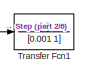
[diagram: root canvas - part 1/6, top center region]
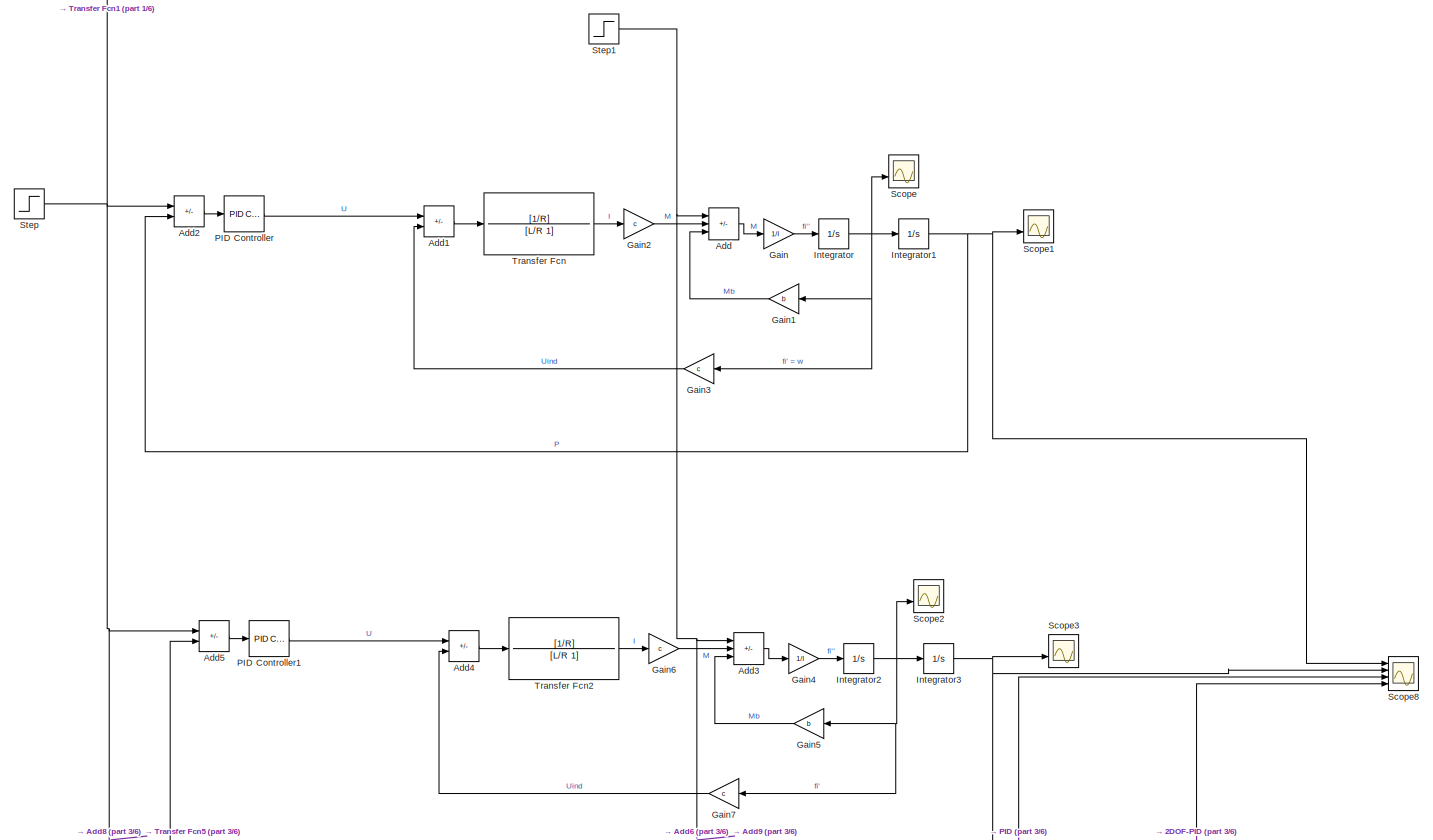
[diagram: root canvas - part 2/6, full width, top band]
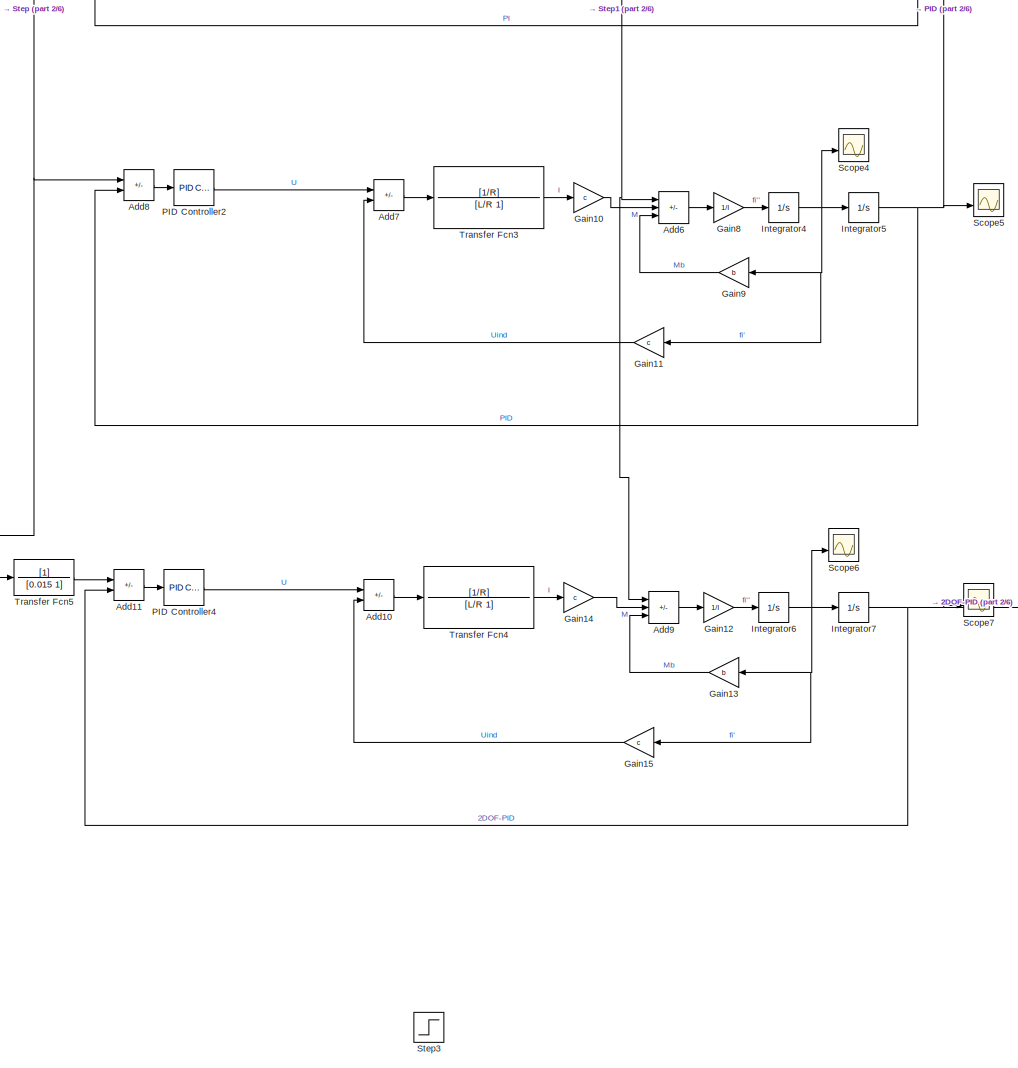
[diagram: root canvas - part 3/6, top center region]
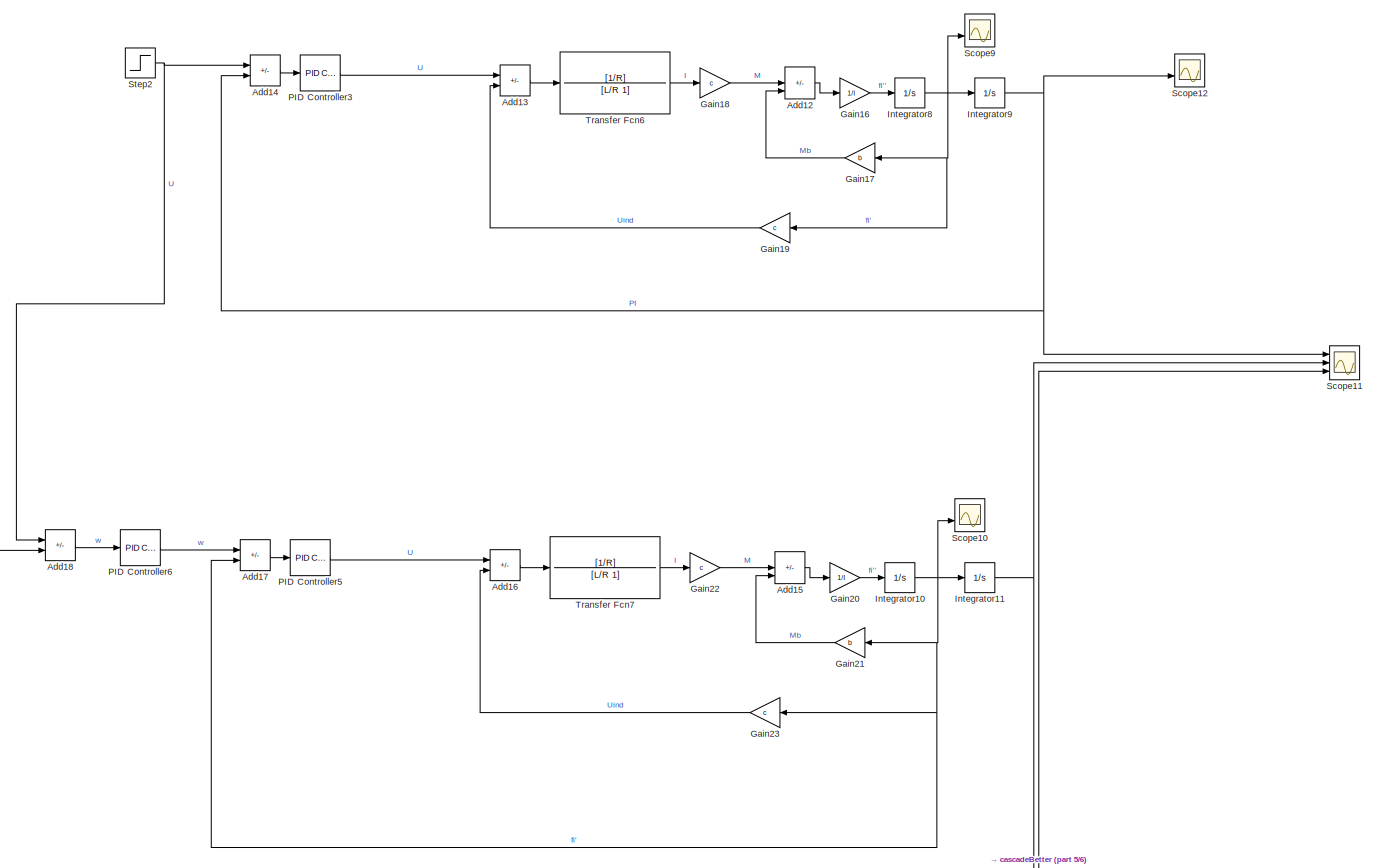
[diagram: root canvas - part 4/6, full width, middle band]
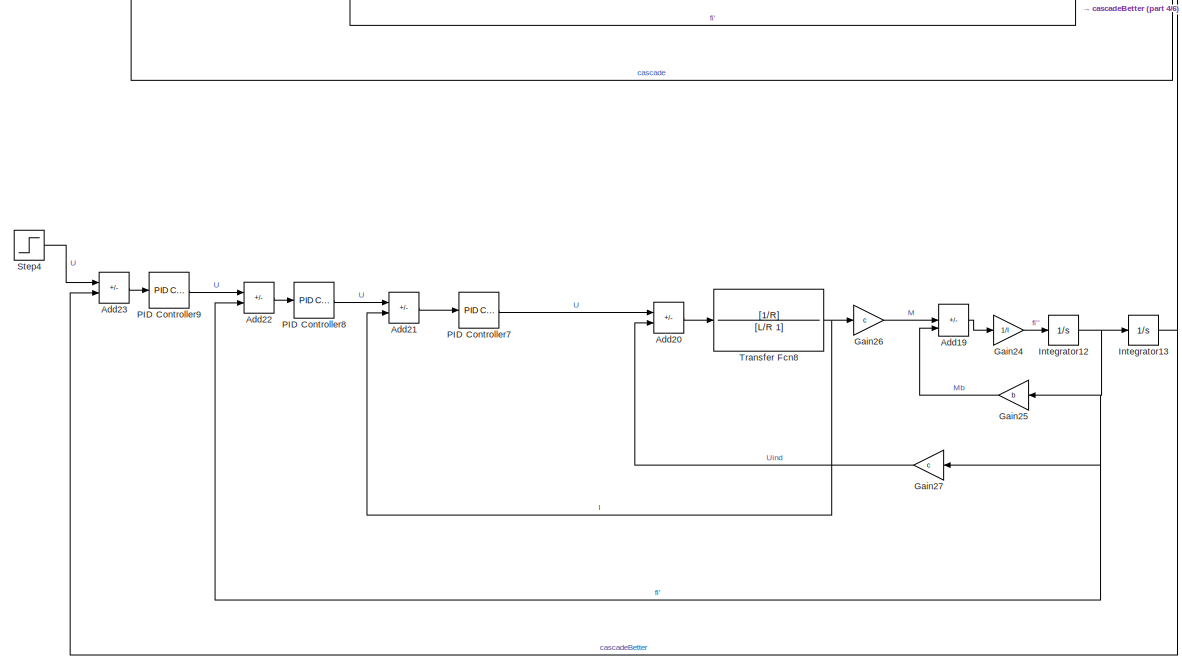
[diagram: root canvas - part 5/6, bottom center region]
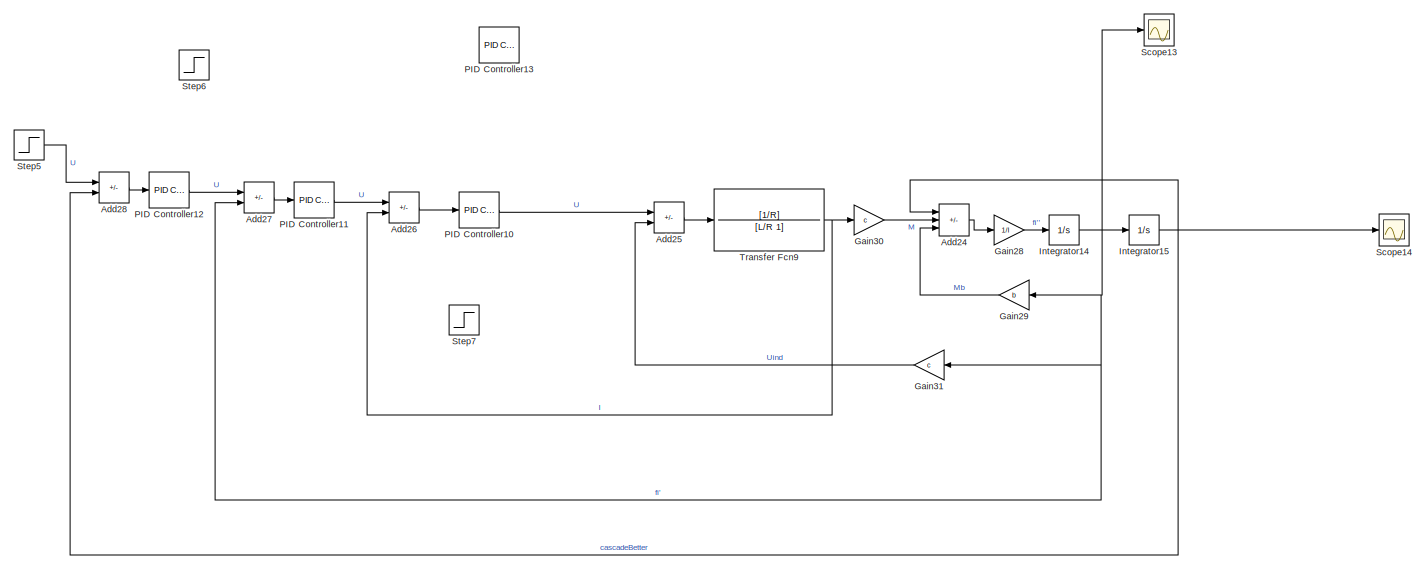
[diagram: root canvas - part 6/6, full width, bottom band]
MODEL slx_0df2f0199767
KIND model
CONFIG AbsTol = auto
CONFIG EnableMultiTasking = off
CONFIG FixedStep = auto
CONFIG MaxStep = auto
CONFIG MinStep = auto
CONFIG RelTol = 1e-3
CONFIG SampleTimeConstraint = Unconstrained
CONFIG SolverName = VariableStepAuto
CONFIG StartTime = 0.0
CONFIG StopTime = 0.2
BLOCK [Sum] Add
  IconShape = rectangular
  Inputs = ++-
  Ports = [3, 1]
BLOCK [Sum] Add1
  IconShape = rectangular
  Inputs = +-
  Ports = [2, 1]
BLOCK [Sum] Add10
  IconShape = rectangular
  Inputs = +-
  Ports = [2, 1]
BLOCK [Sum] Add11
  IconShape = rectangular
  Inputs = +-
  Ports = [2, 1]
BLOCK [Sum] Add12
  IconShape = rectangular
  Inputs = ++-
  Ports = [3, 1]
BLOCK [Sum] Add13
  IconShape = rectangular
  Inputs = +-
  Ports = [2, 1]
BLOCK [Sum] Add14
  IconShape = rectangular
  Inputs = +-
  Ports = [2, 1]
BLOCK [Sum] Add15
  IconShape = rectangular
  Inputs = ++-
  Ports = [3, 1]
BLOCK [Sum] Add16
  IconShape = rectangular
  Inputs = +-
  Ports = [2, 1]
BLOCK [Sum] Add17
  IconShape = rectangular
  Inputs = +-
  Ports = [2, 1]
BLOCK [Sum] Add18
  IconShape = rectangular
  Inputs = +-
  NameLocation = right
  Ports = [2, 1]
BLOCK [Sum] Add19
  IconShape = rectangular
  Inputs = ++-
  Ports = [3, 1]
BLOCK [Sum] Add2
  IconShape = rectangular
  Inputs = +-
  Ports = [2, 1]
BLOCK [Sum] Add20
  IconShape = rectangular
  Inputs = +-
  Ports = [2, 1]
BLOCK [Sum] Add21
  IconShape = rectangular
  Inputs = +-
  Ports = [2, 1]
BLOCK [Sum] Add22
  IconShape = rectangular
  Inputs = +-
  Ports = [2, 1]
BLOCK [Sum] Add23
  IconShape = rectangular
  Inputs = +-
  Ports = [2, 1]
BLOCK [Sum] Add24
  IconShape = rectangular
  Inputs = ++-
  Ports = [3, 1]
BLOCK [Sum] Add25
  IconShape = rectangular
  Inputs = +-
  Ports = [2, 1]
BLOCK [Sum] Add26
  IconShape = rectangular
  Inputs = +-
  Ports = [2, 1]
BLOCK [Sum] Add27
  IconShape = rectangular
  Inputs = +-
  Ports = [2, 1]
BLOCK [Sum] Add28
  IconShape = rectangular
  Inputs = +-
  Ports = [2, 1]
BLOCK [Sum] Add3
  IconShape = rectangular
  Inputs = ++-
  Ports = [3, 1]
BLOCK [Sum] Add4
  IconShape = rectangular
  Inputs = +-
  Ports = [2, 1]
BLOCK [Sum] Add5
  IconShape = rectangular
  Inputs = +-
  Ports = [2, 1]
BLOCK [Sum] Add6
  IconShape = rectangular
  Inputs = ++-
  Ports = [3, 1]
BLOCK [Sum] Add7
  IconShape = rectangular
  Inputs = +-
  Ports = [2, 1]
BLOCK [Sum] Add8
  IconShape = rectangular
  Inputs = +-
  Ports = [2, 1]
BLOCK [Sum] Add9
  IconShape = rectangular
  Inputs = ++-
  Ports = [3, 1]
BLOCK [Gain] Gain
  Gain = 1/I
BLOCK [Gain] Gain1
  Gain = b
  NameLocation = top
BLOCK [Gain] Gain10
  Gain = c
BLOCK [Gain] Gain11
  Gain = c
  NameLocation = top
BLOCK [Gain] Gain12
  Gain = 1/I
BLOCK [Gain] Gain13
  Gain = b
  NameLocation = top
BLOCK [Gain] Gain14
  Gain = c
BLOCK [Gain] Gain15
  Gain = c
  NameLocation = top
BLOCK [Gain] Gain16
  Gain = 1/I
BLOCK [Gain] Gain17
  Gain = b
  NameLocation = top
BLOCK [Gain] Gain18
  Gain = c
BLOCK [Gain] Gain19
  Gain = c
  NameLocation = top
BLOCK [Gain] Gain2
  Gain = c
BLOCK [Gain] Gain20
  Gain = 1/I
BLOCK [Gain] Gain21
  Gain = b
  NameLocation = top
BLOCK [Gain] Gain22
  Gain = c
BLOCK [Gain] Gain23
  Gain = c
  NameLocation = top
BLOCK [Gain] Gain24
  Gain = 1/I
BLOCK [Gain] Gain25
  Gain = b
  NameLocation = top
BLOCK [Gain] Gain26
  Gain = c
BLOCK [Gain] Gain27
  Gain = c
  NameLocation = top
BLOCK [Gain] Gain28
  Gain = 1/I
BLOCK [Gain] Gain29
  Gain = b
  NameLocation = top
BLOCK [Gain] Gain3
  Gain = c
  NameLocation = top
BLOCK [Gain] Gain30
  Gain = c
BLOCK [Gain] Gain31
  Gain = c
  NameLocation = top
BLOCK [Gain] Gain4
  Gain = 1/I
BLOCK [Gain] Gain5
  Gain = b
  NameLocation = top
BLOCK [Gain] Gain6
  Gain = c
BLOCK [Gain] Gain7
  Gain = c
  NameLocation = top
BLOCK [Gain] Gain8
  Gain = 1/I
BLOCK [Gain] Gain9
  Gain = b
  NameLocation = top
BLOCK [Integrator] Integrator
  Ports = [1, 1]
BLOCK [Integrator] Integrator1
  Ports = [1, 1]
BLOCK [Integrator] Integrator10
  Ports = [1, 1]
BLOCK [Integrator] Integrator11
  Ports = [1, 1]
BLOCK [Integrator] Integrator12
  Ports = [1, 1]
BLOCK [Integrator] Integrator13
  Ports = [1, 1]
BLOCK [Integrator] Integrator14
  Ports = [1, 1]
BLOCK [Integrator] Integrator15
  Ports = [1, 1]
BLOCK [Integrator] Integrator2
  Ports = [1, 1]
BLOCK [Integrator] Integrator3
  Ports = [1, 1]
BLOCK [Integrator] Integrator4
  Ports = [1, 1]
BLOCK [Integrator] Integrator5
  Ports = [1, 1]
BLOCK [Integrator] Integrator6
  Ports = [1, 1]
BLOCK [Integrator] Integrator7
  Ports = [1, 1]
BLOCK [Integrator] Integrator8
  Ports = [1, 1]
BLOCK [Integrator] Integrator9
  Ports = [1, 1]
BLOCK [Reference] PID Controller  REF=pid_lib/PID Controller
  Ports = [1, 1]
  SourceBlock = pid_lib/PID Controller
  SourceProductBaseCode = SL
  SourceType = PID 1dof
BLOCK [Reference] PID Controller1  REF=pid_lib/PID Controller
  Ports = [1, 1]
  SourceBlock = pid_lib/PID Controller
  SourceProductBaseCode = SL
  SourceType = PID 1dof
BLOCK [Reference] PID Controller10  REF=pid_lib/PID Controller
  Ports = [1, 1]
  SourceBlock = pid_lib/PID Controller
  SourceProductBaseCode = SL
  SourceType = PID 1dof
BLOCK [Reference] PID Controller11  REF=pid_lib/PID Controller
  Ports = [1, 1]
  SourceBlock = pid_lib/PID Controller
  SourceProductBaseCode = SL
  SourceType = PID 1dof
BLOCK [Reference] PID Controller12  REF=pid_lib/PID Controller
  Ports = [1, 1]
  SourceBlock = pid_lib/PID Controller
  SourceProductBaseCode = SL
  SourceType = PID 1dof
BLOCK [Reference] PID Controller13  REF=pid_lib/PID Controller
  Ports = [1, 1]
  SourceBlock = pid_lib/PID Controller
  SourceProductBaseCode = SL
  SourceType = PID 1dof
BLOCK [Reference] PID Controller2  REF=pid_lib/PID Controller
  Ports = [1, 1]
  SourceBlock = pid_lib/PID Controller
  SourceProductBaseCode = SL
  SourceType = PID 1dof
BLOCK [Reference] PID Controller3  REF=pid_lib/PID Controller
  Ports = [1, 1]
  SourceBlock = pid_lib/PID Controller
  SourceProductBaseCode = SL
  SourceType = PID 1dof
BLOCK [Reference] PID Controller4  REF=pid_lib/PID Controller
  Ports = [1, 1]
  SourceBlock = pid_lib/PID Controller
  SourceProductBaseCode = SL
  SourceType = PID 1dof
BLOCK [Reference] PID Controller5  REF=pid_lib/PID Controller
  Ports = [1, 1]
  SourceBlock = pid_lib/PID Controller
  SourceProductBaseCode = SL
  SourceType = PID 1dof
BLOCK [Reference] PID Controller6  REF=pid_lib/PID Controller
  Ports = [1, 1]
  SourceBlock = pid_lib/PID Controller
  SourceProductBaseCode = SL
  SourceType = PID 1dof
BLOCK [Reference] PID Controller7  REF=pid_lib/PID Controller
  Ports = [1, 1]
  SourceBlock = pid_lib/PID Controller
  SourceProductBaseCode = SL
  SourceType = PID 1dof
BLOCK [Reference] PID Controller8  REF=pid_lib/PID Controller
  Ports = [1, 1]
  SourceBlock = pid_lib/PID Controller
  SourceProductBaseCode = SL
  SourceType = PID 1dof
BLOCK [Reference] PID Controller9  REF=pid_lib/PID Controller
  Ports = [1, 1]
  SourceBlock = pid_lib/PID Controller
  SourceProductBaseCode = SL
  SourceType = PID 1dof
BLOCK [Scope] Scope
  Floating = off
  NumInputPorts = 2
  Ports = [2]
  ScopeSpecificationString = Simulink.scopes.TimeScopeBlockCfg('CurrentConfiguration', extmgr.ConfigurationSet(extmgr.Configuration('Core','General UI',true),extmgr.Configuration('Core','Source UI',true),extmgr.Configuration('Sources','WiredSimulink',true,'DataLoggingLimitDataPoints',true,'DataLoggingSaveFormat','Array','DataLoggingDecimation','1'),extmgr.Configuration('Visuals','Time Domain',true,'SerializedDisplays',{struct...<+1613ch>
BLOCK [Scope] Scope1
  Floating = off
  NumInputPorts = 2
  Ports = [2]
  ScopeSpecificationString = Simulink.scopes.TimeScopeBlockCfg('CurrentConfiguration', extmgr.ConfigurationSet(extmgr.Configuration('Core','General UI',true),extmgr.Configuration('Core','Source UI',true),extmgr.Configuration('Sources','WiredSimulink',true,'DataLoggingLimitDataPoints',true,'DataLoggingSaveFormat','Array','DataLoggingDecimation','1','DataLoggingVariableName','ScopeData1'),extmgr.Configuration('Visuals','Time Do...<+1977ch>
BLOCK [Scope] Scope10
  Floating = off
  NumInputPorts = 2
  Ports = [2]
  ScopeSpecificationString = Simulink.scopes.TimeScopeBlockCfg('CurrentConfiguration', extmgr.ConfigurationSet(extmgr.Configuration('Core','General UI',true),extmgr.Configuration('Core','Source UI',true),extmgr.Configuration('Sources','WiredSimulink',true,'DataLoggingLimitDataPoints',true,'DataLoggingSaveFormat','Array','DataLoggingDecimation','1','DataLoggingVariableName','ScopeData2'),extmgr.Configuration('Visuals','Time Do...<+1665ch>
BLOCK [Scope] Scope11
  Floating = off
  NumInputPorts = 3
  Ports = [3]
  ScopeSpecificationString = Simulink.scopes.TimeScopeBlockCfg('CurrentConfiguration', extmgr.ConfigurationSet(extmgr.Configuration('Core','General UI',true),extmgr.Configuration('Core','Source UI',true),extmgr.Configuration('Sources','WiredSimulink',true,'DataLoggingLimitDataPoints',true,'DataLoggingSaveFormat','Array','DataLoggingDecimation','1','DataLoggingVariableName','ScopeData3'),extmgr.Configuration('Visuals','Time Do...<+1728ch>
BLOCK [Scope] Scope12
  Floating = off
  NumInputPorts = 2
  Ports = [2]
  ScopeSpecificationString = Simulink.scopes.TimeScopeBlockCfg('CurrentConfiguration', extmgr.ConfigurationSet(extmgr.Configuration('Core','General UI',true),extmgr.Configuration('Core','Source UI',true),extmgr.Configuration('Sources','WiredSimulink',true,'DataLoggingLimitDataPoints',true,'DataLoggingSaveFormat','Array','DataLoggingDecimation','1','DataLoggingVariableName','ScopeData1'),extmgr.Configuration('Visuals','Time Do...<+1669ch>
BLOCK [Scope] Scope13
  Floating = off
  NumInputPorts = 1
  Ports = [1]
  ScopeSpecificationString = Simulink.scopes.TimeScopeBlockCfg('CurrentConfiguration', extmgr.ConfigurationSet(extmgr.Configuration('Core','General UI',true),extmgr.Configuration('Core','Source UI',true),extmgr.Configuration('Sources','WiredSimulink',true,'DataLoggingLimitDataPoints',true,'DataLoggingSaveFormat','Array','DataLoggingDecimation','1','DataLoggingVariableName','ScopeData2'),extmgr.Configuration('Visuals','Time Do...<+1723ch>
BLOCK [Scope] Scope14
  Floating = off
  NumInputPorts = 1
  Ports = [1]
  ScopeSpecificationString = Simulink.scopes.TimeScopeBlockCfg('CurrentConfiguration', extmgr.ConfigurationSet(extmgr.Configuration('Core','General UI',true),extmgr.Configuration('Core','Source UI',true),extmgr.Configuration('Sources','WiredSimulink',true,'DataLoggingLimitDataPoints',true,'DataLoggingSaveFormat','Array','DataLoggingDecimation','1','DataLoggingVariableName','ScopeData3'),extmgr.Configuration('Visuals','Time Do...<+1644ch>
BLOCK [Scope] Scope2
  Floating = off
  NumInputPorts = 2
  Ports = [2]
  ScopeSpecificationString = Simulink.scopes.TimeScopeBlockCfg('CurrentConfiguration', extmgr.ConfigurationSet(extmgr.Configuration('Core','General UI',true),extmgr.Configuration('Core','Source UI',true),extmgr.Configuration('Sources','WiredSimulink',true,'DataLoggingLimitDataPoints',true,'DataLoggingSaveFormat','Array','DataLoggingDecimation','1','DataLoggingVariableName','ScopeData1'),extmgr.Configuration('Visuals','Time Do...<+1656ch>
BLOCK [Scope] Scope3
  Floating = off
  NumInputPorts = 2
  Ports = [2]
  ScopeSpecificationString = Simulink.scopes.TimeScopeBlockCfg('CurrentConfiguration', extmgr.ConfigurationSet(extmgr.Configuration('Core','General UI',true),extmgr.Configuration('Core','Source UI',true),extmgr.Configuration('Sources','WiredSimulink',true,'DataLoggingLimitDataPoints',true,'DataLoggingSaveFormat','Array','DataLoggingDecimation','1','DataLoggingVariableName','ScopeData2'),extmgr.Configuration('Visuals','Time Do...<+1978ch>
BLOCK [Scope] Scope4
  Floating = off
  NumInputPorts = 2
  Ports = [2]
  ScopeSpecificationString = Simulink.scopes.TimeScopeBlockCfg('CurrentConfiguration', extmgr.ConfigurationSet(extmgr.Configuration('Core','General UI',true),extmgr.Configuration('Core','Source UI',true),extmgr.Configuration('Sources','WiredSimulink',true,'DataLoggingLimitDataPoints',true,'DataLoggingSaveFormat','Array','DataLoggingDecimation','1','DataLoggingVariableName','ScopeData3'),extmgr.Configuration('Visuals','Time Do...<+1656ch>
BLOCK [Scope] Scope5
  Floating = off
  NumInputPorts = 2
  Ports = [2]
  ScopeSpecificationString = Simulink.scopes.TimeScopeBlockCfg('CurrentConfiguration', extmgr.ConfigurationSet(extmgr.Configuration('Core','General UI',true),extmgr.Configuration('Core','Source UI',true),extmgr.Configuration('Sources','WiredSimulink',true,'DataLoggingLimitDataPoints',true,'DataLoggingSaveFormat','Array','DataLoggingDecimation','1','DataLoggingVariableName','ScopeData4'),extmgr.Configuration('Visuals','Time Do...<+1979ch>
BLOCK [Scope] Scope6
  Floating = off
  NumInputPorts = 2
  Ports = [2]
  ScopeSpecificationString = Simulink.scopes.TimeScopeBlockCfg('CurrentConfiguration', extmgr.ConfigurationSet(extmgr.Configuration('Core','General UI',true),extmgr.Configuration('Core','Source UI',true),extmgr.Configuration('Sources','WiredSimulink',true,'DataLoggingLimitDataPoints',true,'DataLoggingSaveFormat','Array','DataLoggingDecimation','1','DataLoggingVariableName','ScopeData5'),extmgr.Configuration('Visuals','Time Do...<+1656ch>
BLOCK [Scope] Scope7
  Floating = off
  NumInputPorts = 2
  Ports = [2]
  ScopeSpecificationString = Simulink.scopes.TimeScopeBlockCfg('CurrentConfiguration', extmgr.ConfigurationSet(extmgr.Configuration('Core','General UI',true),extmgr.Configuration('Core','Source UI',true),extmgr.Configuration('Sources','WiredSimulink',true,'DataLoggingLimitDataPoints',true,'DataLoggingSaveFormat','Array','DataLoggingDecimation','1','DataLoggingVariableName','ScopeData6'),extmgr.Configuration('Visuals','Time Do...<+1984ch>
BLOCK [Scope] Scope8
  Floating = off
  NumInputPorts = 4
  Ports = [4]
  ScopeSpecificationString = Simulink.scopes.TimeScopeBlockCfg('CurrentConfiguration', extmgr.ConfigurationSet(extmgr.Configuration('Core','General UI',true),extmgr.Configuration('Core','Source UI',true),extmgr.Configuration('Sources','WiredSimulink',true,'DataLoggingLimitDataPoints',true,'DataLoggingSaveFormat','Array','DataLoggingDecimation','1','DataLoggingVariableName','ScopeData7'),extmgr.Configuration('Visuals','Time Do...<+1698ch>
BLOCK [Scope] Scope9
  Floating = off
  NumInputPorts = 2
  Ports = [2]
  ScopeSpecificationString = Simulink.scopes.TimeScopeBlockCfg('CurrentConfiguration', extmgr.ConfigurationSet(extmgr.Configuration('Core','General UI',true),extmgr.Configuration('Core','Source UI',true),extmgr.Configuration('Sources','WiredSimulink',true,'DataLoggingLimitDataPoints',true,'DataLoggingSaveFormat','Array','DataLoggingDecimation','1','DataLoggingVariableName','ScopeData1'),extmgr.Configuration('Visuals','Time Do...<+1656ch>
BLOCK [Step] Step
  SampleTime = 0
  Time = 0
BLOCK [Step] Step1
  After = 0.2
  SampleTime = 0
  Time = 0.5
BLOCK [Step] Step2
  SampleTime = 0
  Time = 0
BLOCK [Step] Step3
  SampleTime = 0
  Time = 0.5
BLOCK [Step] Step4
  SampleTime = 0
  Time = 0
BLOCK [Step] Step5
  SampleTime = 0
  Time = 0
BLOCK [Step] Step6
  SampleTime = 0
  Time = 0
BLOCK [Step] Step7
  SampleTime = 0
  Time = 0
BLOCK [TransferFcn] Transfer Fcn
  Denominator = [L/R 1]
  Numerator = [1/R]
BLOCK [TransferFcn] Transfer Fcn1
  Denominator = [0.001 1]
BLOCK [TransferFcn] Transfer Fcn2
  Denominator = [L/R 1]
  Numerator = [1/R]
BLOCK [TransferFcn] Transfer Fcn3
  Denominator = [L/R 1]
  Numerator = [1/R]
BLOCK [TransferFcn] Transfer Fcn4
  Denominator = [L/R 1]
  Numerator = [1/R]
BLOCK [TransferFcn] Transfer Fcn5
  Denominator = [0.015 1]
BLOCK [TransferFcn] Transfer Fcn6
  Denominator = [L/R 1]
  Numerator = [1/R]
BLOCK [TransferFcn] Transfer Fcn7
  Denominator = [L/R 1]
  Numerator = [1/R]
BLOCK [TransferFcn] Transfer Fcn8
  Denominator = [L/R 1]
  Numerator = [1/R]
BLOCK [TransferFcn] Transfer Fcn9
  Denominator = [L/R 1]
  Numerator = [1/R]
LINE Add10:1 -> Transfer Fcn4:1
LINE Add11:1 -> PID Controller4:1
LINE Add12:1 -> Gain16:1
LINE Add13:1 -> Transfer Fcn6:1
LINE Add14:1 -> PID Controller3:1
LINE Add15:1 -> Gain20:1
LINE Add16:1 -> Transfer Fcn7:1
LINE Add17:1 -> PID Controller5:1
LINE Add18:1 -> PID Controller6:1
LINE Add19:1 -> Gain24:1
LINE Add1:1 -> Transfer Fcn:1
LINE Add20:1 -> Transfer Fcn8:1
LINE Add21:1 -> PID Controller7:1
LINE Add22:1 -> PID Controller8:1
LINE Add23:1 -> PID Controller9:1
LINE Add24:1 -> Gain28:1
LINE Add25:1 -> Transfer Fcn9:1
LINE Add26:1 -> PID Controller10:1
LINE Add27:1 -> PID Controller11:1
LINE Add28:1 -> PID Controller12:1
LINE Add2:1 -> PID Controller:1
LINE Add3:1 -> Gain4:1
LINE Add4:1 -> Transfer Fcn2:1
LINE Add5:1 -> PID Controller1:1
LINE Add6:1 -> Gain8:1
LINE Add7:1 -> Transfer Fcn3:1
LINE Add8:1 -> PID Controller2:1
LINE Add9:1 -> Gain12:1
LINE Add:1 -> Gain:1
LINE Gain10:1 -> Add6:2
LINE Gain11:1 -> Add7:2
LINE Gain12:1 -> Integrator6:1
LINE Gain13:1 -> Add9:3
LINE Gain14:1 -> Add9:2
LINE Gain15:1 -> Add10:2
LINE Gain16:1 -> Integrator8:1
LINE Gain17:1 -> Add12:3
LINE Gain18:1 -> Add12:2
LINE Gain19:1 -> Add13:2
LINE Gain1:1 -> Add:3
LINE Gain20:1 -> Integrator10:1
LINE Gain21:1 -> Add15:3
LINE Gain22:1 -> Add15:2
LINE Gain23:1 -> Add16:2
LINE Gain24:1 -> Integrator12:1
LINE Gain25:1 -> Add19:3
LINE Gain26:1 -> Add19:2
LINE Gain27:1 -> Add20:2
LINE Gain28:1 -> Integrator14:1
LINE Gain29:1 -> Add24:3
LINE Gain2:1 -> Add:2
LINE Gain30:1 -> Add24:2
LINE Gain31:1 -> Add25:2
LINE Gain3:1 -> Add1:2
LINE Gain4:1 -> Integrator2:1
LINE Gain5:1 -> Add3:3
LINE Gain6:1 -> Add3:2
LINE Gain7:1 -> Add4:2
LINE Gain8:1 -> Integrator4:1
LINE Gain9:1 -> Add6:3
LINE Gain:1 -> Integrator:1
NET Integrator10:1 -> Add17:2, Gain21:1, Gain23:1, Integrator11:1, Scope10:2
NET Integrator11:1 -> Add18:2, Scope11:2
NET Integrator12:1 -> Add22:2, Gain25:1, Gain27:1, Integrator13:1
NET Integrator13:1 -> Add23:2, Scope11:3
NET Integrator14:1 -> Add27:2, Gain29:1, Gain31:1, Integrator15:1, Scope13:1
NET Integrator15:1 -> Add24:1, Add28:2, Scope14:1
NET Integrator1:1 -> Add2:2, Scope1:2, Scope8:1
NET Integrator2:1 -> Gain5:1, Gain7:1, Integrator3:1, Scope2:2
NET Integrator3:1 -> Add5:2, Scope3:2, Scope8:2
NET Integrator4:1 -> Gain11:1, Gain9:1, Integrator5:1, Scope4:2
NET Integrator5:1 -> Add8:2, Scope5:2, Scope8:3
NET Integrator6:1 -> Gain13:1, Gain15:1, Integrator7:1, Scope6:2
NET Integrator7:1 -> Add11:2, Scope7:2, Scope8:4
NET Integrator8:1 -> Gain17:1, Gain19:1, Integrator9:1, Scope9:2
NET Integrator9:1 -> Add14:2, Scope11:1, Scope12:2
NET Integrator:1 -> Gain1:1, Gain3:1, Integrator1:1, Scope:2
LINE PID Controller10:1 -> Add25:1
LINE PID Controller11:1 -> Add26:1
LINE PID Controller12:1 -> Add27:1
LINE PID Controller1:1 -> Add4:1
LINE PID Controller2:1 -> Add7:1
LINE PID Controller3:1 -> Add13:1
LINE PID Controller4:1 -> Add10:1
LINE PID Controller5:1 -> Add16:1
LINE PID Controller6:1 -> Add17:1
LINE PID Controller7:1 -> Add20:1
LINE PID Controller8:1 -> Add21:1
LINE PID Controller9:1 -> Add22:1
LINE PID Controller:1 -> Add1:1
NET Step1:1 -> Add3:1, Add6:1, Add9:1, Add:1
NET Step2:1 -> Add14:1, Add18:1
LINE Step4:1 -> Add23:1
LINE Step5:1 -> Add28:1
NET Step:1 -> Add2:1, Add5:1, Add8:1, Transfer Fcn1:1, Transfer Fcn5:1
LINE Transfer Fcn2:1 -> Gain6:1
LINE Transfer Fcn3:1 -> Gain10:1
LINE Transfer Fcn4:1 -> Gain14:1
LINE Transfer Fcn5:1 -> Add11:1
LINE Transfer Fcn6:1 -> Gain18:1
LINE Transfer Fcn7:1 -> Gain22:1
NET Transfer Fcn8:1 -> Add21:2, Gain26:1
NET Transfer Fcn9:1 -> Add26:2, Gain30:1
LINE Transfer Fcn:1 -> Gain2:1
note: NET lines group one-source signal fan-out (src -> all destinations, sorted); 1:1 wires keep LINE
